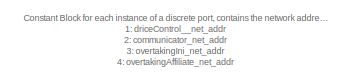
[diagram: root canvas - part 1/2, top left region]
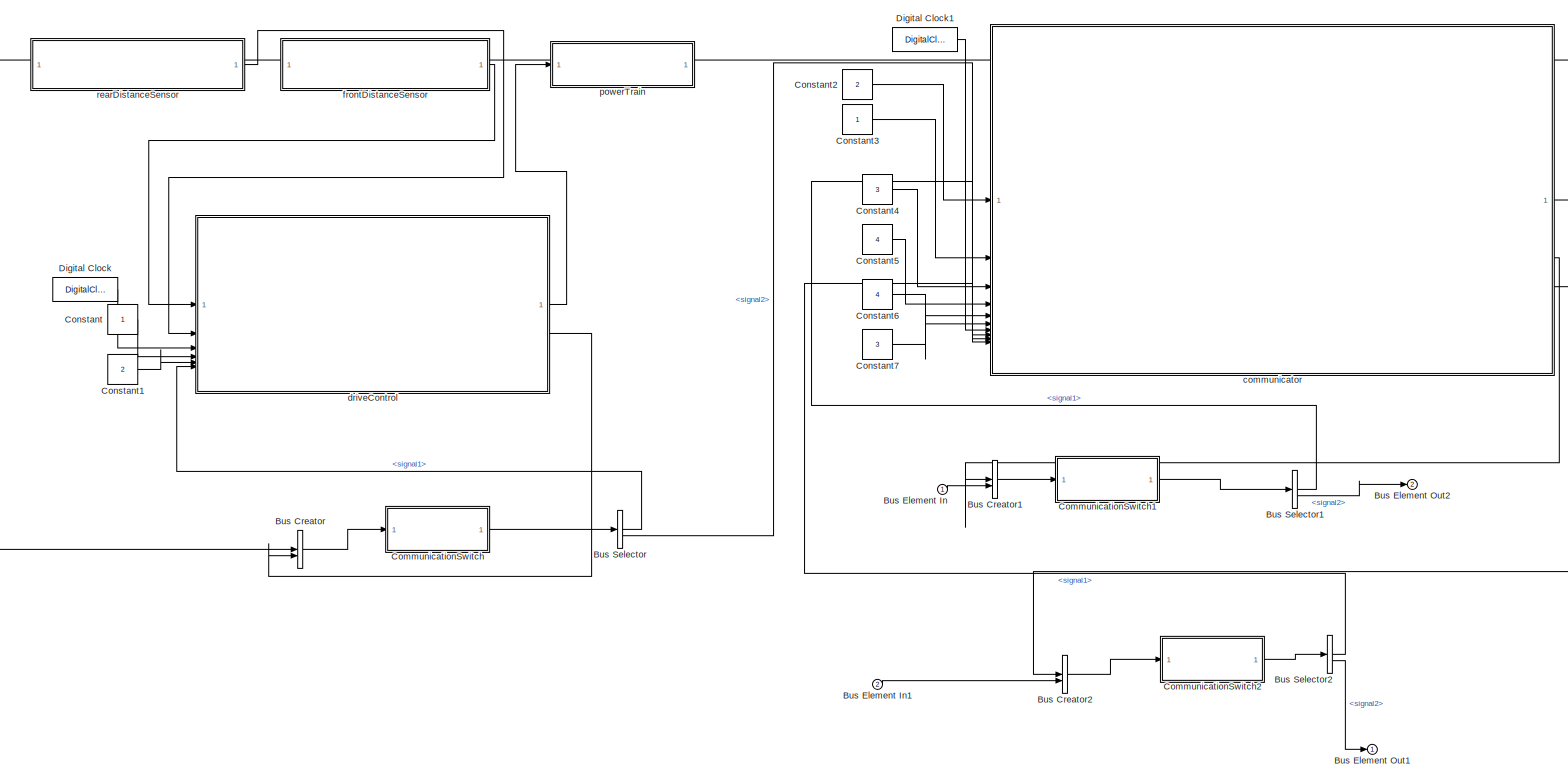
[diagram: root canvas - part 2/2, most of the canvas]
MODEL slx_14e4e6166657
KIND model
CONFIG AbsTol = auto
CONFIG EnableMultiTasking = off
CONFIG FixedStep = auto
CONFIG MaxStep = auto
CONFIG MinStep = auto
CONFIG RelTol = 1e-3
CONFIG SampleTimeConstraint = Unconstrained
CONFIG SolverName = VariableStepAuto
CONFIG StartTime = 0.0
CONFIG StopTime = 10.0
BLOCK [SubSystem]  powerTrain
  ReferencedSubsystem = PowerTrain
BLOCK [BusCreator] Bus Creator
  DisplayOption = bar
  InheritFromInputs = on
  Inputs = 2
BLOCK [BusCreator] Bus Creator1
  DisplayOption = bar
  InheritFromInputs = on
  Inputs = 2
BLOCK [BusCreator] Bus Creator2
  DisplayOption = bar
  InheritFromInputs = on
  Inputs = 2
BLOCK [Inport] Bus Element In
BLOCK [Inport] Bus Element In1
  Port = 2
BLOCK [Outport] Bus Element Out1
BLOCK [Outport] Bus Element Out2
  Port = 2
BLOCK [BusSelector] Bus Selector
  OutputSignals = signal1,signal2
BLOCK [BusSelector] Bus Selector1
  OutputSignals = signal1,signal2
BLOCK [BusSelector] Bus Selector2
  OutputSignals = signal1,signal2
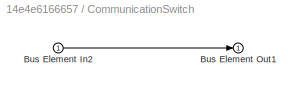
BLOCK [SubSystem] CommunicationSwitch
BLOCK [Inport] CommunicationSwitch/Bus Element In2
BLOCK [Outport] CommunicationSwitch/Bus Element Out1
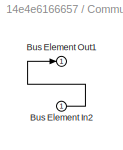
BLOCK [SubSystem] CommunicationSwitch1
BLOCK [Inport] CommunicationSwitch1/Bus Element In2
BLOCK [Outport] CommunicationSwitch1/Bus Element Out1
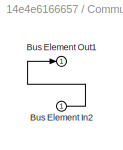
BLOCK [SubSystem] CommunicationSwitch2
BLOCK [Inport] CommunicationSwitch2/Bus Element In2
BLOCK [Outport] CommunicationSwitch2/Bus Element Out1
BLOCK [Constant] Constant
BLOCK [Constant] Constant1
  Value = 2
BLOCK [Constant] Constant2
  Value = 2
BLOCK [Constant] Constant3
BLOCK [Constant] Constant4
  Value = 3
BLOCK [Constant] Constant5
  Value = 4
BLOCK [Constant] Constant6
  Value = 4
BLOCK [Constant] Constant7
  Value = 3
BLOCK [DigitalClock] Digital Clock
BLOCK [DigitalClock] Digital Clock1
BLOCK [SubSystem] communicator
  PortSchema = {"entries":[{"content":{"sides":[{"content":{"connectorIds":["In7","In8","In1","In2","In9","In3","In4","In10","In5","In6"]},"type":"ConnectorPlacement.EquallySpacedRectSide","uuid":"597f2600-0266-49ee-88a2-3e6a618a9f6e"},{"content":{"connectorIds":["Out1","Out2","Out3"],"side":"RIGHT"},"type":"ConnectorPlacement.EquallySpacedRectSide","uuid":"8a05e0df-8602-4cac-b3df-55f21ffd748f"},{"content":{"sid...<+291ch>
  ReferencedSubsystem = Coordinator
BLOCK [SubSystem] driveControl
  ReferencedSubsystem = DriveControl
BLOCK [SubSystem] frontDistanceSensor
  ReferencedSubsystem = DistanceSensor
BLOCK [SubSystem] rearDistanceSensor
  ReferencedSubsystem = DistanceSensor
ANNOTATION (root): Constant Block for each instance of a discrete port, contains the network address 1: driceControl__net_addr 2: communicator_net_addr 3: overtakingIni_net_addr 4: overtakingAffiliate_net_addr
LINE Bus Creator1:1 -> CommunicationSwitch1:1
LINE Bus Creator2:1 -> CommunicationSwitch2:1
LINE Bus Creator:1 -> CommunicationSwitch:1
LINE Bus Element In1:1 -> Bus Creator2:2
LINE Bus Element In:1 -> Bus Creator1:2
LINE Bus Selector1:1 -> communicator:9
LINE Bus Selector1:2 -> Bus Element Out2:1
LINE Bus Selector2:1 -> communicator:10
LINE Bus Selector2:2 -> Bus Element Out1:1
LINE Bus Selector:1 -> driveControl:6
LINE Bus Selector:2 -> communicator:8
LINE CommunicationSwitch/Bus Element In2:1 -> CommunicationSwitch/Bus Element Out1:1
LINE CommunicationSwitch1/Bus Element In2:1 -> CommunicationSwitch1/Bus Element Out1:1
LINE CommunicationSwitch1:1 -> Bus Selector1:1
LINE CommunicationSwitch2/Bus Element In2:1 -> CommunicationSwitch2/Bus Element Out1:1
LINE CommunicationSwitch2:1 -> Bus Selector2:1
LINE CommunicationSwitch:1 -> Bus Selector:1
LINE Constant1:1 -> driveControl:5
LINE Constant2:1 -> communicator:1
LINE Constant3:1 -> communicator:2
LINE Constant4:1 -> communicator:3
LINE Constant5:1 -> communicator:4
LINE Constant6:1 -> communicator:5
LINE Constant7:1 -> communicator:6
LINE Constant:1 -> driveControl:4
LINE Digital Clock1:1 -> communicator:7
LINE Digital Clock:1 -> driveControl:3
LINE communicator:1 -> Bus Creator:1
LINE communicator:2 -> Bus Creator1:1
LINE communicator:3 -> Bus Creator2:1
LINE driveControl:1 ->  powerTrain:1
LINE driveControl:2 -> Bus Creator:2
LINE frontDistanceSensor:1 -> driveControl:1
LINE rearDistanceSensor:1 -> driveControl:2
